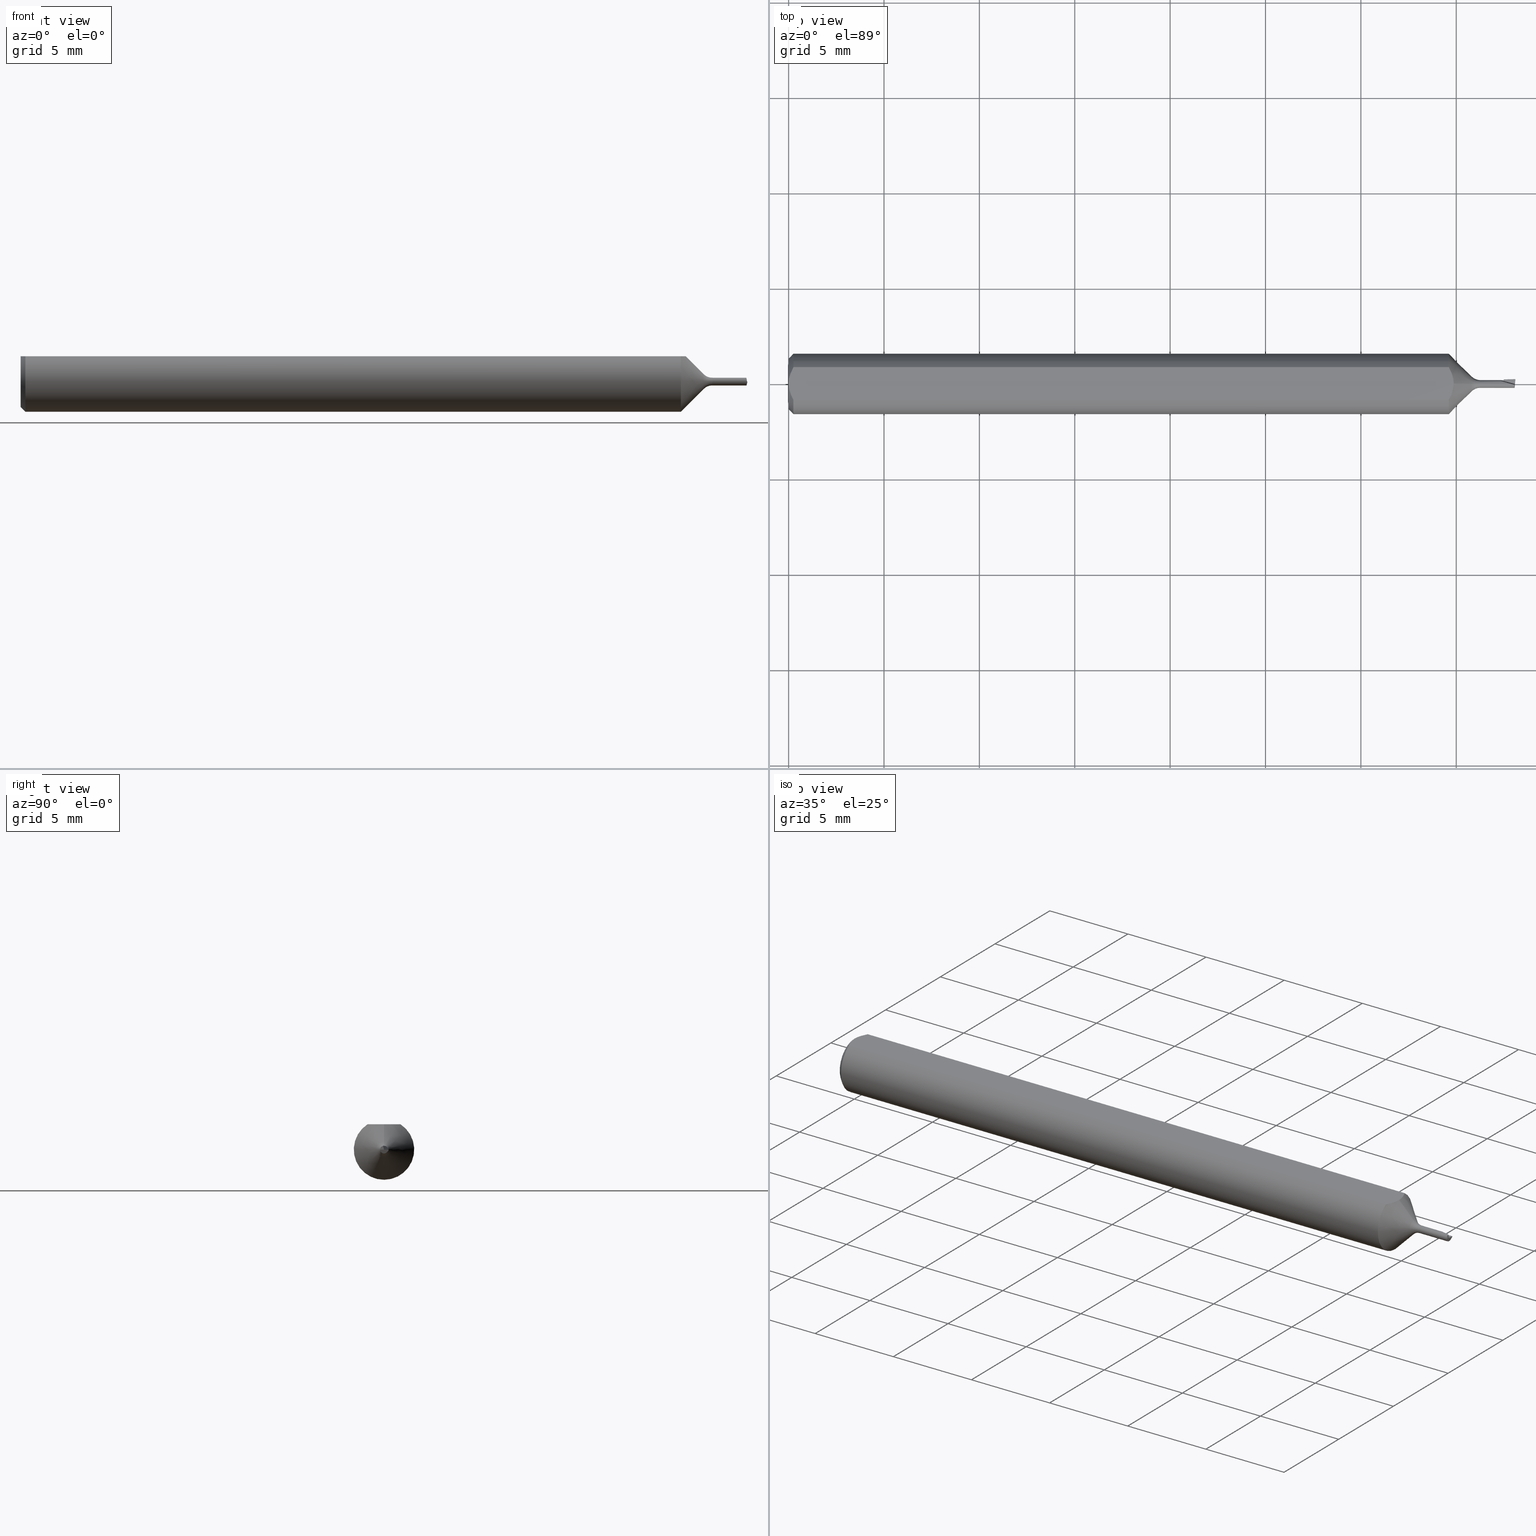
[diagram: canonical four-view strip — front | top / right | iso, engineering-drawing reading convention]
A machine part, canonical four-view strip (front | top / right | iso — engineering-drawing reading convention). The complete STEP part file that produces these views, byte-faithful:
ISO-10303-21;
HEADER;
FILE_DESCRIPTION (( 'STEP AP203' ),
    '1' );
FILE_NAME ('210004-MB020075.STEP',
    '2025-01-28T22:28:11',
    ( '' ),
    ( '' ),
    'SwSTEP 2.0',
    'SolidWorks 2024',
    '' );
FILE_SCHEMA (( 'CONFIG_CONTROL_DESIGN' ));
ENDSEC;

DATA;
#1 = CARTESIAN_POINT ( 'NONE',  ( 1.499999999999999556, 0.009999999999999982861, 0.000000000000000000 ) ) ;
#2 = VERTEX_POINT ( 'NONE', #649 ) ;
#3 = DIRECTION ( 'NONE',  ( 0.000000000000000000, 0.000000000000000000, 1.000000000000000000 ) ) ;
#4 = CARTESIAN_POINT ( 'NONE',  ( 1.474761426859002356, 0.01878347275728139629, 6.402768735150616918E-18 ) ) ;
#5 = EDGE_LOOP ( 'NONE', ( #680, #18, #164, #569, #694, #367 ) ) ;
#6 = AXIS2_PLACEMENT_3D ( 'NONE', #147, #628, #261 ) ;
#7 = LINE ( 'NONE', #613, #705 ) ;
#8 = EDGE_CURVE ( 'NONE', #373, #517, #662, .T. ) ;
#9 = LINE ( 'NONE', #511, #268 ) ;
#10 = EDGE_LOOP ( 'NONE', ( #564, #186, #493, #255, #621 ) ) ;
#11 = DIRECTION ( 'NONE',  ( 1.000000000000000000, 0.000000000000000000, 0.000000000000000000 ) ) ;
#12 = CARTESIAN_POINT ( 'NONE',  ( 1.475999999999999979, 0.003554855916695717592, -0.007219560439024959482 ) ) ;
#13 = VECTOR ( 'NONE', #515, 39.37007874015748854 ) ;
#14 = ORIENTED_EDGE ( 'NONE', *, *, #523, .T. ) ;
#15 = LOCAL_TIME ( 14, 28, 11.00000000000000000, #578 ) ;
#16 = CARTESIAN_POINT ( 'NONE',  ( 1.367985771068365164, -0.02321109678391105810, 0.05235000000000001458 ) ) ;
#17 = DIRECTION ( 'NONE',  ( -1.000000000000000000, -0.000000000000000000, -0.000000000000000000 ) ) ;
#18 = ORIENTED_EDGE ( 'NONE', *, *, #336, .T. ) ;
#19 = ADVANCED_FACE ( 'NONE', ( #267 ), #48, .F. ) ;
#20 = VECTOR ( 'NONE', #62, 39.37007874015748854 ) ;
#21 = DIRECTION ( 'NONE',  ( 0.000000000000000000, 0.000000000000000000, 1.000000000000000000 ) ) ;
#22 = FACE_OUTER_BOUND ( 'NONE', #424, .T. ) ;
#23 = ORIENTED_EDGE ( 'NONE', *, *, #421, .T. ) ;
#24 = CARTESIAN_POINT ( 'NONE',  ( 1.372649999999999926, 4.307014571141468397E-21, 0.05235000000000001458 ) ) ;
#25 = CARTESIAN_POINT ( 'NONE',  ( 1.475999999999999979, 0.008000000000000000167, -1.707404996040164512E-17 ) ) ;
#26 = VERTEX_POINT ( 'NONE', #42 ) ;
#27 = AXIS2_PLACEMENT_3D ( 'NONE', #273, #707, #372 ) ;
#28 =( BOUNDED_CURVE ( )  B_SPLINE_CURVE ( 3, ( #687, #413, #354, #419 ),
 .UNSPECIFIED., .F., .F. ) 
 B_SPLINE_CURVE_WITH_KNOTS ( ( 4, 4 ),
 ( 5.959285661863048311, 7.298880934359480932 ),
 .UNSPECIFIED. ) 
 CURVE ( )  GEOMETRIC_REPRESENTATION_ITEM ( )  RATIONAL_B_SPLINE_CURVE ( ( 1.000000000000000000, 0.8559648765899723344, 0.8559648765899723344, 1.000000000000000000 ) ) 
 REPRESENTATION_ITEM ( '' )  );
#29 = CARTESIAN_POINT ( 'NONE',  ( 1.497996491941867347, 9.797174393178825149E-19, -0.008000000000000000167 ) ) ;
#30 = ADVANCED_FACE ( 'NONE', ( #223 ), #274, .F. ) ;
#31 = DIRECTION ( 'NONE',  ( 0.000000000000000000, 0.000000000000000000, 1.000000000000000000 ) ) ;
#32 = VERTEX_POINT ( 'NONE', #211 ) ;
#33 =( NAMED_UNIT ( * ) PLANE_ANGLE_UNIT ( ) SI_UNIT ( $, .RADIAN. ) );
#34 = VECTOR ( 'NONE', #388, 39.37007874015748143 ) ;
#35 = LINE ( 'NONE', #25, #689 ) ;
#36 = ORIENTED_EDGE ( 'NONE', *, *, #514, .T. ) ;
#37 = DIRECTION ( 'NONE',  ( 0.01850989765925709768, -0.7068644733530222712, 0.7071067811865463515 ) ) ;
#38 = ORIENTED_EDGE ( 'NONE', *, *, #98, .T. ) ;
#39 = VECTOR ( 'NONE', #675, 39.37007874015748143 ) ;
#40 = APPROVAL_DATE_TIME ( #269, #334 ) ;
#41 = CARTESIAN_POINT ( 'NONE',  ( 1.475158586863234866, 0.003616544101236906193, -0.007135867765297259323 ) ) ;
#42 = CARTESIAN_POINT ( 'NONE',  ( 1.475158586863234866, 0.003616544101236906193, -0.007135867765297259323 ) ) ;
#43 = EDGE_CURVE ( 'NONE', #474, #236, #609, .T. ) ;
#44 = DIRECTION ( 'NONE',  ( 0.000000000000000000, 0.000000000000000000, 1.000000000000000000 ) ) ;
#45 = CIRCLE ( 'NONE', #79, 0.05235000000000005621 ) ;
#46 = DIRECTION ( 'NONE',  ( -0.1553955395109672677, -0.2251791664716555619, 0.9618453978094534396 ) ) ;
#47 = CARTESIAN_POINT ( 'NONE',  ( 1.475999999999999979, 0.000000000000000000, 0.000000000000000000 ) ) ;
#48 = PLANE ( 'NONE',  #646 ) ;
#49 = AXIS2_PLACEMENT_3D ( 'NONE', #65, #222, #285 ) ;
#50 = APPROVAL_PERSON_ORGANIZATION ( #471, #344, #146 ) ;
#51 = PLANE ( 'NONE',  #318 ) ;
#52 = EDGE_CURVE ( 'NONE', #633, #301, #539, .T. ) ;
#53 = VERTEX_POINT ( 'NONE', #432 ) ;
#54 = CARTESIAN_POINT ( 'NONE',  ( 1.475066397683010289, 0.007137106857861592359, -0.003614098186195962344 ) ) ;
#55 = PRODUCT_DEFINITION ( 'UNKNOWN', '', #706, #541 ) ;
#56 = VECTOR ( 'NONE', #17, 39.37007874015748143 ) ;
#57 = CARTESIAN_POINT ( 'NONE',  ( 1.498181877299916032, 0.001856985181444872164, -0.007837534848287940059 ) ) ;
#58 = DIRECTION ( 'NONE',  ( -0.1594343877653937036, -0.7002650904991644110, -0.6958516214151341250 ) ) ;
#59 = CARTESIAN_POINT ( 'NONE',  ( 1.371579082550520745, 0.01191445041138213153, 0.05235000000000001458 ) ) ;
#60 = CARTESIAN_POINT ( 'NONE',  ( 0.01000000000000002970, 0.000000000000000000, -0.06235000000000001652 ) ) ;
#61 = VECTOR ( 'NONE', #233, 39.37007874015748854 ) ;
#62 = DIRECTION ( 'NONE',  ( 0.000000000000000000, -0.7072279454806355004, -0.7069855961271340750 ) ) ;
#63 = ORIENTED_EDGE ( 'NONE', *, *, #440, .F. ) ;
#64 = ADVANCED_FACE ( 'NONE', ( #488 ), #214, .F. ) ;
#65 = CARTESIAN_POINT ( 'NONE',  ( 1.409677669529663779, 0.000000000000000000, 0.000000000000000000 ) ) ;
#66 = CARTESIAN_POINT ( 'NONE',  ( 1.475722269840933576, 0.003646604819637955068, -0.007120572848122872639 ) ) ;
#67 = ORIENTED_EDGE ( 'NONE', *, *, #653, .F. ) ;
#68 = CARTESIAN_POINT ( 'NONE',  ( 0.000000000000000000, 0.000000000000000000, 0.05235000000000005621 ) ) ;
#69 = CARTESIAN_POINT ( 'NONE',  ( 1.475999999999999979, 0.003661598756718206608, -0.007112854177107787688 ) ) ;
#70 = ORIENTED_EDGE ( 'NONE', *, *, #644, .F. ) ;
#71 = CARTESIAN_POINT ( 'NONE',  ( 1.475441797860601589, 0.003631586551092023159, -0.007128244069752311292 ) ) ;
#72 = TOROIDAL_SURFACE ( 'NONE', #328, 0.03300000000000002931, 0.02500000000000003261 ) ;
#73 = EDGE_CURVE ( 'NONE', #629, #513, #45, .T. ) ;
#74 = VERTEX_POINT ( 'NONE', #271 ) ;
#75 = CC_DESIGN_APPROVAL ( #110, ( #706 ) ) ;
#76 = COORDINATED_UNIVERSAL_TIME_OFFSET ( 8, 0, .BEHIND. ) ;
#77 = FACE_OUTER_BOUND ( 'NONE', #325, .T. ) ;
#78 = EDGE_LOOP ( 'NONE', ( #590, #63 ) ) ;
#79 = AXIS2_PLACEMENT_3D ( 'NONE', #327, #331, #547 ) ;
#80 = CARTESIAN_POINT ( 'NONE',  ( 1.371577944566060525, -0.01191841935955603726, 0.05235000000000002152 ) ) ;
#81 = PLANE ( 'NONE',  #416 ) ;
#82 = ORIENTED_EDGE ( 'NONE', *, *, #444, .F. ) ;
#83 = PERSON_AND_ORGANIZATION_ROLE ( 'design_owner' ) ;
#84 = PLANE ( 'NONE',  #105 ) ;
#85 = ORIENTED_EDGE ( 'NONE', *, *, #492, .T. ) ;
#86 = AXIS2_PLACEMENT_3D ( 'NONE', #506, #503, #187 ) ;
#87 = LOCAL_TIME ( 14, 28, 11.00000000000000000, #643 ) ;
#88 =( NAMED_UNIT ( * ) SI_UNIT ( $, .STERADIAN. ) SOLID_ANGLE_UNIT ( ) );
#89 = EDGE_CURVE ( 'NONE', #633, #248, #377, .T. ) ;
#90 = DIRECTION ( 'NONE',  ( -1.000000000000000000, -0.000000000000000000, -0.000000000000000000 ) ) ;
#91 = ORIENTED_EDGE ( 'NONE', *, *, #421, .F. ) ;
#92 = DATE_TIME_ROLE ( 'creation_date' ) ;
#93 = CARTESIAN_POINT ( 'NONE',  ( 1.499124228362134437, -1.011562607044112469E-05, 2.603792618961250911E-16 ) ) ;
#94 = ORIENTED_EDGE ( 'NONE', *, *, #43, .T. ) ;
#95 = CYLINDRICAL_SURFACE ( 'NONE', #483, 0.008000000000000000167 ) ;
#96 = CC_DESIGN_PERSON_AND_ORGANIZATION_ASSIGNMENT ( #384, #540, ( #706 ) ) ;
#97 = VERTEX_POINT ( 'NONE', #549 ) ;
#98 = EDGE_CURVE ( 'NONE', #138, #2, #374, .T. ) ;
#99 = CIRCLE ( 'NONE', #340, 0.008000000000000000167 ) ;
#100 = PERSON_AND_ORGANIZATION ( #181, #295 ) ;
#101 = CARTESIAN_POINT ( 'NONE',  ( 1.475086706337204179, 0.006361550643809284200, -0.005145663541866631399 ) ) ;
#102 = ORIENTED_EDGE ( 'NONE', *, *, #567, .F. ) ;
#103 = COORDINATED_UNIVERSAL_TIME_OFFSET ( 8, 0, .BEHIND. ) ;
#104 = LINE ( 'NONE', #703, #195 ) ;
#105 = AXIS2_PLACEMENT_3D ( 'NONE', #311, #37, #579 ) ;
#106 = CARTESIAN_POINT ( 'NONE',  ( 1.118115407029749875, 3.475397056992419894E-33, -2.987958743070287587E-17 ) ) ;
#107 = CARTESIAN_POINT ( 'NONE',  ( 0.01000000000000002970, 0.000000000000000000, 0.000000000000000000 ) ) ;
#108 = B_SPLINE_CURVE_WITH_KNOTS ( 'NONE', 3,
 ( #127, #348, #679, #59, #124, #404 ),
 .UNSPECIFIED., .F., .F.,
 ( 4, 2, 4 ),
 ( 0.002206836618262071094, 0.002655951637760988696, 0.003105066657259906299 ),
 .UNSPECIFIED. ) ;
#109 = DIRECTION ( 'NONE',  ( 0.000000000000000000, 0.000000000000000000, -1.000000000000000000 ) ) ;
#110 = APPROVAL ( #681, 'UNSPECIFIED' ) ;
#111 = AXIS2_PLACEMENT_3D ( 'NONE', #686, #526, #21 ) ;
#112 = UNCERTAINTY_MEASURE_WITH_UNIT (LENGTH_MEASURE( 1.000000000000000082E-05 ), #518, 'distance_accuracy_value', 'NONE');
#113 = EDGE_CURVE ( 'NONE', #53, #688, #711, .T. ) ;
#114 = DIRECTION ( 'NONE',  ( -1.000000000000000000, -0.000000000000000000, -0.000000000000000000 ) ) ;
#115 = CARTESIAN_POINT ( 'NONE',  ( 1.407639831148760123, 0.04167748776716001524, -1.493979371535143794E-17 ) ) ;
#116 = CARTESIAN_POINT ( 'NONE',  ( 1.493110350759723648, -0.0006179133109972500789, 0.007999999999999996697 ) ) ;
#117 = CARTESIAN_POINT ( 'NONE',  ( 0.000000000000000000, 9.797174393178825149E-19, -0.008000000000000000167 ) ) ;
#118 = CARTESIAN_POINT ( 'NONE',  ( 1.403346222888795403, 0.02565352359317315395, -1.707404996040164512E-17 ) ) ;
#119 = FACE_OUTER_BOUND ( 'NONE', #78, .T. ) ;
#120 = ORIENTED_EDGE ( 'NONE', *, *, #132, .T. ) ;
#121 = EDGE_CURVE ( 'NONE', #467, #642, #108, .T. ) ;
#122 = DIRECTION ( 'NONE',  ( 0.000000000000000000, 0.000000000000000000, -1.000000000000000000 ) ) ;
#123 = CIRCLE ( 'NONE', #472, 0.06235000000000000958 ) ;
#124 = CARTESIAN_POINT ( 'NONE',  ( 1.372650000000000148, 0.005922000946320196864, 0.05235000000000002152 ) ) ;
#125 = ORIENTED_EDGE ( 'NONE', *, *, #355, .T. ) ;
#126 = CARTESIAN_POINT ( 'NONE',  ( 1.409677669529663779, 0.000000000000000000, 0.000000000000000000 ) ) ;
#127 = CARTESIAN_POINT ( 'NONE',  ( 1.362649999999999917, 0.03386738844375221380, 0.05235000000000000070 ) ) ;
#128 = ORIENTED_EDGE ( 'NONE', *, *, #199, .T. ) ;
#129 = AXIS2_PLACEMENT_3D ( 'NONE', #243, #291, #227 ) ;
#130 =( BOUNDED_CURVE ( )  B_SPLINE_CURVE ( 3, ( #191, #501, #556, #664 ),
 .UNSPECIFIED., .F., .F. ) 
 B_SPLINE_CURVE_WITH_KNOTS ( ( 4, 4 ),
 ( 4.982986395506907584, 6.553782722301815689 ),
 .UNSPECIFIED. ) 
 CURVE ( )  GEOMETRIC_REPRESENTATION_ITEM ( )  RATIONAL_B_SPLINE_CURVE ( ( 1.000000000000000000, 0.8047378541243622729, 0.8047378541243622729, 1.000000000000000000 ) ) 
 REPRESENTATION_ITEM ( '' )  );
#131 = DIRECTION ( 'NONE',  ( -0.7071067811865479058, 0.000000000000000000, 0.7071067811865469066 ) ) ;
#132 = EDGE_CURVE ( 'NONE', #200, #159, #231, .T. ) ;
#133 = DIRECTION ( 'NONE',  ( 0.000000000000000000, 0.000000000000000000, 1.000000000000000000 ) ) ;
#134 = ORIENTED_EDGE ( 'NONE', *, *, #554, .F. ) ;
#135 = APPLICATION_PROTOCOL_DEFINITION ( 'international standard', 'config_control_design', 1994, #256 ) ;
#136 = DIRECTION ( 'NONE',  ( -0.000000000000000000, 1.000000000000000000, 1.182878904194732666E-16 ) ) ;
#137 = VECTOR ( 'NONE', #602, 39.37007874015748854 ) ;
#138 = VERTEX_POINT ( 'NONE', #667 ) ;
#139 = LINE ( 'NONE', #475, #13 ) ;
#140 = CARTESIAN_POINT ( 'NONE',  ( 1.475999999999999979, 0.008000000000000000167, 0.000000000000000000 ) ) ;
#141 = ORIENTED_EDGE ( 'NONE', *, *, #533, .F. ) ;
#142 = VECTOR ( 'NONE', #385, 39.37007874015748854 ) ;
#143 = CARTESIAN_POINT ( 'NONE',  ( 1.409677669529663779, 1.876444296597530893E-18, -0.01532233047033630148 ) ) ;
#144 = ORIENTED_EDGE ( 'NONE', *, *, #444, .T. ) ;
#145 = B_SPLINE_CURVE_WITH_KNOTS ( 'NONE', 3,
 ( #423, #528, #203, #299, #480, #247 ),
 .UNSPECIFIED., .F., .F.,
 ( 4, 2, 4 ),
 ( 0.0009229516234079799489, 0.001371626545108142140, 0.001820301466808304115 ),
 .UNSPECIFIED. ) ;
#146 = APPROVAL_ROLE ( '' ) ;
#147 = CARTESIAN_POINT ( 'NONE',  ( 1.491406878966275107, 0.02355843477542560530, 0.06931876481191022454 ) ) ;
#148 = EDGE_LOOP ( 'NONE', ( #616, #153, #189, #157 ) ) ;
#149 = CONICAL_SURFACE ( 'NONE', #27, 0.01532233047033630148, 0.7853981633974476129 ) ;
#150 = AXIS2_PLACEMENT_3D ( 'NONE', #361, #249, #634 ) ;
#151 = MECHANICAL_CONTEXT ( 'NONE', #371, 'mechanical' ) ;
#152 = FACE_OUTER_BOUND ( 'NONE', #202, .T. ) ;
#153 = ORIENTED_EDGE ( 'NONE', *, *, #259, .T. ) ;
#154 = VECTOR ( 'NONE', #611, 39.37007874015748854 ) ;
#155 = SHAPE_DEFINITION_REPRESENTATION ( #160, #339 ) ;
#156 = FACE_OUTER_BOUND ( 'NONE', #525, .T. ) ;
#157 = ORIENTED_EDGE ( 'NONE', *, *, #286, .T. ) ;
#158 = CARTESIAN_POINT ( 'NONE',  ( 1.475118488375769976, 0.005147843557673923570, -0.006359786677677238195 ) ) ;
#159 = VERTEX_POINT ( 'NONE', #12 ) ;
#160 = PRODUCT_DEFINITION_SHAPE ( 'NONE', 'NONE',  #55 ) ;
#161 = CIRCLE ( 'NONE', #275, 0.007999999999999998432 ) ;
#162 = DIRECTION ( 'NONE',  ( 0.000000000000000000, 0.000000000000000000, 1.000000000000000000 ) ) ;
#163 = CARTESIAN_POINT ( 'NONE',  ( 1.427355339059327433, 0.000000000000000000, 0.03300000000000002931 ) ) ;
#164 = ORIENTED_EDGE ( 'NONE', *, *, #210, .T. ) ;
#165 = EDGE_CURVE ( 'NONE', #248, #373, #9, .T. ) ;
#166 = DIRECTION ( 'NONE',  ( 0.02311287349681699979, -0.8826450287709640685, 0.4694715627858882523 ) ) ;
#167 = DIRECTION ( 'NONE',  ( 0.000000000000000000, 0.000000000000000000, -1.000000000000000000 ) ) ;
#168 = CC_DESIGN_PERSON_AND_ORGANIZATION_ASSIGNMENT ( #636, #365, ( #55 ) ) ;
#169 = ADVANCED_FACE ( 'NONE', ( #281 ), #234, .F. ) ;
#170 = DIRECTION ( 'NONE',  ( 0.000000000000000000, 0.2673071603635651106, -0.9636113749942802897 ) ) ;
#171 = ORIENTED_EDGE ( 'NONE', *, *, #219, .T. ) ;
#172 = LOCAL_TIME ( 14, 28, 11.00000000000000000, #76 ) ;
#173 = DIRECTION ( 'NONE',  ( 0.000000000000000000, 0.000000000000000000, 1.000000000000000000 ) ) ;
#174 = ORIENTED_EDGE ( 'NONE', *, *, #272, .T. ) ;
#175 = DIRECTION ( 'NONE',  ( -1.000000000000000000, -0.000000000000000000, -0.000000000000000000 ) ) ;
#176 = ADVANCED_FACE ( 'NONE', ( #185 ), #465, .T. ) ;
#177 = LINE ( 'NONE', #395, #20 ) ;
#178 = ORIENTED_EDGE ( 'NONE', *, *, #89, .T. ) ;
#179 = LINE ( 'NONE', #118, #685 ) ;
#180 = CARTESIAN_POINT ( 'NONE',  ( 0.000000000000000000, 0.000000000000000000, 0.000000000000000000 ) ) ;
#181 = PERSON ( 'UNSPECIFIED', 'UNSPECIFIED', 'UNSPECIFIED', ('UNSPECIFIED'), ('UNSPECIFIED'), ('UNSPECIFIED') ) ;
#182 = EDGE_LOOP ( 'NONE', ( #505, #532, #85, #656, #442, #520, #470, #232 ) ) ;
#183 =( BOUNDED_CURVE ( )  B_SPLINE_CURVE ( 3, ( #54, #101, #158, #41 ),
 .UNSPECIFIED., .F., .T. ) 
 B_SPLINE_CURVE_WITH_KNOTS ( ( 4, 4 ),
 ( 0.4687396896696281456, 1.101713903381030590 ),
 .UNSPECIFIED. ) 
 CURVE ( )  GEOMETRIC_REPRESENTATION_ITEM ( )  RATIONAL_B_SPLINE_CURVE ( ( 1.000000000000000000, 0.9668897316992471902, 0.9668897316992471902, 1.000000000000000000 ) ) 
 REPRESENTATION_ITEM ( '' )  );
#184 = CARTESIAN_POINT ( 'NONE',  ( 1.372649999999999926, 4.307014571141468397E-21, 0.05235000000000001458 ) ) ;
#185 = FACE_OUTER_BOUND ( 'NONE', #428, .T. ) ;
#186 = ORIENTED_EDGE ( 'NONE', *, *, #165, .F. ) ;
#187 = DIRECTION ( 'NONE',  ( 0.000000000000000000, 0.000000000000000000, -1.000000000000000000 ) ) ;
#188 = CARTESIAN_POINT ( 'NONE',  ( 0.01000000000000849862, -0.03386738844395138781, 0.05235000000000001458 ) ) ;
#189 = ORIENTED_EDGE ( 'NONE', *, *, #477, .F. ) ;
#190 = LENGTH_MEASURE_WITH_UNIT ( LENGTH_MEASURE( 0.02539999999999999897 ), #464 );
#191 = CARTESIAN_POINT ( 'NONE',  ( 1.490804266888408725, 0.000000000000000000, 0.008000000000000000167 ) ) ;
#192 = VERTEX_POINT ( 'NONE', #342 ) ;
#193 = CARTESIAN_POINT ( 'NONE',  ( 1.372649999999999926, -0.005922793856370157060, 0.05235000000000002152 ) ) ;
#194 = LINE ( 'NONE', #631, #581 ) ;
#195 = VECTOR ( 'NONE', #589, 39.37007874015748854 ) ;
#196 = EDGE_LOOP ( 'NONE', ( #637, #292, #383, #396, #288, #356, #580 ) ) ;
#197 = CARTESIAN_POINT ( 'NONE',  ( 1.365493310265788907, -0.02863284266924762123, 0.05235000000000002152 ) ) ;
#198 = FACE_OUTER_BOUND ( 'NONE', #182, .T. ) ;
#199 = EDGE_CURVE ( 'NONE', #647, #312, #521, .T. ) ;
#200 = VERTEX_POINT ( 'NONE', #69 ) ;
#201 = DIRECTION ( 'NONE',  ( 0.000000000000000000, 0.000000000000000000, 1.000000000000000000 ) ) ;
#202 = EDGE_LOOP ( 'NONE', ( #38, #478, #67, #251, #485, #174, #654, #128, #352, #277, #482, #260 ) ) ;
#203 = CARTESIAN_POINT ( 'NONE',  ( 0.004671770759546972629, 0.02323517832780105929, 0.05235000000000002152 ) ) ;
#204 = ORIENTED_EDGE ( 'NONE', *, *, #653, .T. ) ;
#205 = EDGE_CURVE ( 'NONE', #74, #509, #130, .T. ) ;
#206 = CARTESIAN_POINT ( 'NONE',  ( 1.498546506023773484, 0.004483298119365848947, -0.006881635113016477782 ) ) ;
#207 = ORIENTED_EDGE ( 'NONE', *, *, #618, .T. ) ;
#208 = AXIS2_PLACEMENT_3D ( 'NONE', #603, #652, #109 ) ;
#209 = CALENDAR_DATE ( 2025, 28, 1 ) ;
#210 = EDGE_CURVE ( 'NONE', #629, #688, #527, .T. ) ;
#211 = CARTESIAN_POINT ( 'NONE',  ( 1.427355339059327433, 9.797174393178825149E-19, -0.007999999999999998432 ) ) ;
#212 = PERSON_AND_ORGANIZATION_ROLE ( 'design_supplier' ) ;
#213 = PLANE ( 'NONE',  #695 ) ;
#214 = PLANE ( 'NONE',  #208 ) ;
#215 = CC_DESIGN_APPROVAL ( #334, ( #239 ) ) ;
#216 = DATE_AND_TIME ( #595, #390 ) ;
#217 = DIRECTION ( 'NONE',  ( 0.000000000000000000, 0.000000000000000000, 1.000000000000000000 ) ) ;
#218 = ORIENTED_EDGE ( 'NONE', *, *, #463, .T. ) ;
#219 = EDGE_CURVE ( 'NONE', #308, #474, #529, .T. ) ;
#220 = FACE_OUTER_BOUND ( 'NONE', #458, .T. ) ;
#221 = CARTESIAN_POINT ( 'NONE',  ( 1.498303939223913694, 0.002736161146605380155, -0.007517540966287257313 ) ) ;
#222 = DIRECTION ( 'NONE',  ( -1.000000000000000000, -0.000000000000000000, -0.000000000000000000 ) ) ;
#223 = FACE_OUTER_BOUND ( 'NONE', #10, .T. ) ;
#224 = CIRCLE ( 'NONE', #630, 0.06235000000000000958 ) ;
#225 = ADVANCED_FACE ( 'NONE', ( #119 ), #454, .F. ) ;
#226 = DIRECTION ( 'NONE',  ( 0.9659258262890716429, -0.2588190451025078054, -0.000000000000000000 ) ) ;
#227 = DIRECTION ( 'NONE',  ( 0.1396943646708782294, 0.000000000000000000, 0.9901946699913101169 ) ) ;
#228 = ORIENTED_EDGE ( 'NONE', *, *, #409, .T. ) ;
#229 = CARTESIAN_POINT ( 'NONE',  ( 1.497866140468993246, -0.001833174280245126499, 0.007787135035316118670 ) ) ;
#230 = AXIS2_PLACEMENT_3D ( 'NONE', #163, #317, #167 ) ;
#231 = LINE ( 'NONE', #563, #154 ) ;
#232 = ORIENTED_EDGE ( 'NONE', *, *, #259, .F. ) ;
#233 = DIRECTION ( 'NONE',  ( 0.9996573249755575929, 0.02617694830785934068, 4.043793518691314298E-18 ) ) ;
#234 = PLANE ( 'NONE',  #129 ) ;
#235 = EDGE_CURVE ( 'NONE', #26, #200, #596, .T. ) ;
#236 = VERTEX_POINT ( 'NONE', #504 ) ;
#237 = CARTESIAN_POINT ( 'NONE',  ( 1.427355339059327433, 0.000000000000000000, 0.000000000000000000 ) ) ;
#238 = AXIS2_PLACEMENT_3D ( 'NONE', #237, #624, #173 ) ;
#239 = SECURITY_CLASSIFICATION ( '', '', #698 ) ;
#240 = ORIENTED_EDGE ( 'NONE', *, *, #562, .F. ) ;
#241 = EDGE_CURVE ( 'NONE', #2, #32, #296, .T. ) ;
#242 = CARTESIAN_POINT ( 'NONE',  ( 1.475999999999999979, 0.002736161146605381889, -0.007517540966287257313 ) ) ;
#243 = CARTESIAN_POINT ( 'NONE',  ( 1.495443673491786418, 0.01381007852008727874, -0.03465938240595468900 ) ) ;
#244 = VECTOR ( 'NONE', #552, 39.37007874015748143 ) ;
#245 = EDGE_LOOP ( 'NONE', ( #349, #23 ) ) ;
#246 = APPROVAL_STATUS ( 'not_yet_approved' ) ;
#247 = CARTESIAN_POINT ( 'NONE',  ( 0.000000000000000000, 0.000000000000000000, 0.05235000000000005621 ) ) ;
#248 = VERTEX_POINT ( 'NONE', #1 ) ;
#249 = DIRECTION ( 'NONE',  ( 0.000000000000000000, 0.000000000000000000, 1.000000000000000000 ) ) ;
#250 = CARTESIAN_POINT ( 'NONE',  ( 1.475999999999999979, 0.007775862789353930014, -0.002999999999999993991 ) ) ;
#251 = ORIENTED_EDGE ( 'NONE', *, *, #302, .F. ) ;
#252 = CARTESIAN_POINT ( 'NONE',  ( 1.497586494561550907, -0.004686291501015366762, -0.007999999999999996697 ) ) ;
#253 = CARTESIAN_POINT ( 'NONE',  ( 1.499282403470483471, 0.007951440925968056295, -0.003816130532801942365 ) ) ;
#254 =( BOUNDED_CURVE ( )  B_SPLINE_CURVE ( 3, ( #715, #460, #116, #551 ),
 .UNSPECIFIED., .F., .T. ) 
 B_SPLINE_CURVE_WITH_KNOTS ( ( 4, 4 ),
 ( 4.751785341208482727, 4.982986395506907584 ),
 .UNSPECIFIED. ) 
 CURVE ( )  GEOMETRIC_REPRESENTATION_ITEM ( )  RATIONAL_B_SPLINE_CURVE ( ( 1.000000000000000000, 0.9955504644608670350, 0.9955504644608670350, 1.000000000000000000 ) ) 
 REPRESENTATION_ITEM ( '' )  );
#255 = ORIENTED_EDGE ( 'NONE', *, *, #286, .F. ) ;
#256 = APPLICATION_CONTEXT ( 'configuration controlled 3d designs of mechanical parts and assemblies' ) ;
#257 = CARTESIAN_POINT ( 'NONE',  ( 1.475050322466534336, 0.007750994607946593007, -0.002999999999999993991 ) ) ;
#258 = EDGE_LOOP ( 'NONE', ( #405, #141, #414, #70 ) ) ;
#259 = EDGE_CURVE ( 'NONE', #301, #647, #177, .T. ) ;
#260 = ORIENTED_EDGE ( 'NONE', *, *, #639, .F. ) ;
#261 = DIRECTION ( 'NONE',  ( 0.1396943646708923570, 0.000000000000000000, -0.9901946699913082295 ) ) ;
#262 = ORIENTED_EDGE ( 'NONE', *, *, #453, .F. ) ;
#263 = CIRCLE ( 'NONE', #498, 0.06235000000000001652 ) ;
#264 = CC_DESIGN_SECURITY_CLASSIFICATION ( #239, ( #706 ) ) ;
#265 = ADVANCED_FACE ( 'NONE', ( #283 ), #696, .T. ) ;
#266 = DIRECTION ( 'NONE',  ( -1.000000000000000000, -0.000000000000000000, -0.000000000000000000 ) ) ;
#267 = FACE_OUTER_BOUND ( 'NONE', #5, .T. ) ;
#268 = VECTOR ( 'NONE', #620, 39.37007874015748143 ) ;
#269 = DATE_AND_TIME ( #437, #87 ) ;
#270 = CARTESIAN_POINT ( 'NONE',  ( 1.409677669529663779, 0.000000000000000000, 0.01532233047033632230 ) ) ;
#271 = CARTESIAN_POINT ( 'NONE',  ( 1.490804266888408725, 0.000000000000000000, 0.008000000000000000167 ) ) ;
#272 = EDGE_CURVE ( 'NONE', #509, #436, #586, .T. ) ;
#273 = CARTESIAN_POINT ( 'NONE',  ( 1.409677669529663779, 0.000000000000000000, 0.000000000000000000 ) ) ;
#274 = PLANE ( 'NONE',  #393 ) ;
#275 = AXIS2_PLACEMENT_3D ( 'NONE', #427, #548, #538 ) ;
#276 = CARTESIAN_POINT ( 'NONE',  ( 1.500296196177055119, 0.01338553779562396025, 3.158699242674304408E-16 ) ) ;
#277 = ORIENTED_EDGE ( 'NONE', *, *, #235, .T. ) ;
#278 = DIRECTION ( 'NONE',  ( 0.000000000000000000, 0.000000000000000000, -1.000000000000000000 ) ) ;
#279 = CARTESIAN_POINT ( 'NONE',  ( 1.498078346293486796, 0.0009355995202188460398, -0.008000000000000000167 ) ) ;
#280 = ADVANCED_FACE ( 'NONE', ( #152 ), #476, .T. ) ;
#281 = FACE_OUTER_BOUND ( 'NONE', #196, .T. ) ;
#282 = LINE ( 'NONE', #350, #650 ) ;
#283 = FACE_OUTER_BOUND ( 'NONE', #574, .T. ) ;
#284 = VERTEX_POINT ( 'NONE', #206 ) ;
#285 = DIRECTION ( 'NONE',  ( 0.000000000000000000, 0.000000000000000000, 1.000000000000000000 ) ) ;
#286 = EDGE_CURVE ( 'NONE', #436, #633, #35, .T. ) ;
#287 = CARTESIAN_POINT ( 'NONE',  ( 1.475999999999999979, 0.003661598756718206608, -0.007112854177107787688 ) ) ;
#288 = ORIENTED_EDGE ( 'NONE', *, *, #692, .T. ) ;
#289 = CARTESIAN_POINT ( 'NONE',  ( 1.475999999999999979, 0.009371537882339842779, -1.067128122525102820E-18 ) ) ;
#290 = EDGE_CURVE ( 'NONE', #517, #455, #28, .T. ) ;
#291 = DIRECTION ( 'NONE',  ( -0.9864997997699074261, 0.08630754905045000258, 0.1391731009600518376 ) ) ;
#292 = ORIENTED_EDGE ( 'NONE', *, *, #418, .T. ) ;
#293 = DIRECTION ( 'NONE',  ( 0.000000000000000000, 0.000000000000000000, 1.000000000000000000 ) ) ;
#294 = AXIS2_PLACEMENT_3D ( 'NONE', #484, #641, #369 ) ;
#295 = ORGANIZATION ( 'UNSPECIFIED', 'UNSPECIFIED', '' ) ;
#296 = LINE ( 'NONE', #117, #244 ) ;
#297 = VERTEX_POINT ( 'NONE', #473 ) ;
#298 = PERSON_AND_ORGANIZATION ( #181, #295 ) ;
#299 = CARTESIAN_POINT ( 'NONE',  ( 0.001063697276021615887, 0.01189177144351694602, 0.05235000000000001458 ) ) ;
#300 = AXIS2_PLACEMENT_3D ( 'NONE', #180, #398, #449 ) ;
#301 = VERTEX_POINT ( 'NONE', #250 ) ;
#302 = EDGE_CURVE ( 'NONE', #74, #236, #531, .T. ) ;
#303 = DIRECTION ( 'NONE',  ( -1.000000000000000000, -0.000000000000000000, -0.000000000000000000 ) ) ;
#304 = ORIENTED_EDGE ( 'NONE', *, *, #241, .F. ) ;
#305 = VECTOR ( 'NONE', #693, 39.37007874015748143 ) ;
#306 = CARTESIAN_POINT ( 'NONE',  ( 1.427355339059327433, 0.000000000000000000, 0.000000000000000000 ) ) ;
#307 = APPROVAL_PERSON_ORGANIZATION ( #298, #110, #412 ) ;
#308 = VERTEX_POINT ( 'NONE', #516 ) ;
#309 = CALENDAR_DATE ( 2025, 28, 1 ) ;
#310 = ADVANCED_FACE ( 'NONE', ( #22 ), #575, .F. ) ;
#311 = CARTESIAN_POINT ( 'NONE',  ( 1.475050322466534336, 0.007750994607946593007, -0.002999999999999993991 ) ) ;
#312 = VERTEX_POINT ( 'NONE', #690 ) ;
#313 = CARTESIAN_POINT ( 'NONE',  ( 0.01000000000000849862, -0.03386738844395138781, 0.05235000000000001458 ) ) ;
#314 = LINE ( 'NONE', #257, #599 ) ;
#315 = ORIENTED_EDGE ( 'NONE', *, *, #290, .T. ) ;
#316 = FACE_OUTER_BOUND ( 'NONE', #691, .T. ) ;
#317 = DIRECTION ( 'NONE',  ( 0.000000000000000000, -1.000000000000000000, 0.000000000000000000 ) ) ;
#318 = AXIS2_PLACEMENT_3D ( 'NONE', #597, #496, #170 ) ;
#319 = DIRECTION ( 'NONE',  ( 1.000000000000000000, 0.000000000000000000, 0.000000000000000000 ) ) ;
#320 = DIRECTION ( 'NONE',  ( 3.169514471227730272E-17, 1.182878904194732666E-16, -1.000000000000000000 ) ) ;
#321 = ADVANCED_FACE ( 'NONE', ( #77 ), #81, .F. ) ;
#322 = AXIS2_PLACEMENT_3D ( 'NONE', #410, #625, #133 ) ;
#323 = PERSON_AND_ORGANIZATION ( #181, #295 ) ;
#324 = LINE ( 'NONE', #276, #137 ) ;
#325 = EDGE_LOOP ( 'NONE', ( #392, #120, #502 ) ) ;
#326 = CYLINDRICAL_SURFACE ( 'NONE', #353, 0.06235000000000000958 ) ;
#327 = CARTESIAN_POINT ( 'NONE',  ( 0.000000000000000000, 0.000000000000000000, 0.000000000000000000 ) ) ;
#328 = AXIS2_PLACEMENT_3D ( 'NONE', #448, #175, #3 ) ;
#329 = FACE_OUTER_BOUND ( 'NONE', #677, .T. ) ;
#330 = ADVANCED_FACE ( 'NONE', ( #198 ), #84, .F. ) ;
#331 = DIRECTION ( 'NONE',  ( -1.000000000000000000, -0.000000000000000000, -0.000000000000000000 ) ) ;
#332 = VECTOR ( 'NONE', #366, 39.37007874015748143 ) ;
#333 = DIRECTION ( 'NONE',  ( 1.000000000000000000, 0.000000000000000000, 0.000000000000000000 ) ) ;
#334 = APPROVAL ( #544, 'UNSPECIFIED' ) ;
#335 = CARTESIAN_POINT ( 'NONE',  ( 1.475380964135455386, 0.007128662531458702586, -0.003630774008704138779 ) ) ;
#336 = EDGE_CURVE ( 'NONE', #192, #629, #145, .T. ) ;
#337 = DIRECTION ( 'NONE',  ( 0.000000000000000000, 0.000000000000000000, 1.000000000000000000 ) ) ;
#338 = ORIENTED_EDGE ( 'NONE', *, *, #210, .F. ) ;
#339 = ADVANCED_BREP_SHAPE_REPRESENTATION ( '210004-MB020075', ( #425, #150 ), #673 ) ;
#340 = AXIS2_PLACEMENT_3D ( 'NONE', #47, #266, #713 ) ;
#341 = DIRECTION ( 'NONE',  ( -0.000000000000000000, 0.9396926207859068736, 0.3420201433256727097 ) ) ;
#342 = CARTESIAN_POINT ( 'NONE',  ( 0.01000000000000002970, 0.03386738844375219992, 0.05235000000000001458 ) ) ;
#343 = ORIENTED_EDGE ( 'NONE', *, *, #601, .T. ) ;
#344 = APPROVAL ( #246, 'UNSPECIFIED' ) ;
#345 = EDGE_CURVE ( 'NONE', #312, #26, #314, .T. ) ;
#346 = FACE_OUTER_BOUND ( 'NONE', #420, .T. ) ;
#347 = CLOSED_SHELL ( 'NONE', ( #176, #585, #310, #280, #468, #499, #321, #623, #674, #486, #508, #64, #632, #30, #495, #225, #430, #330, #169, #265, #19 ) ) ;
#348 = CARTESIAN_POINT ( 'NONE',  ( 1.365497562589150560, 0.02862501412462241726, 0.05235000000000001458 ) ) ;
#349 = ORIENTED_EDGE ( 'NONE', *, *, #73, .T. ) ;
#350 = CARTESIAN_POINT ( 'NONE',  ( 0.000000000000000000, 0.03386738844375221380, 0.05235000000000000070 ) ) ;
#351 = DIRECTION ( 'NONE',  ( -0.9996573249755577040, -0.02617694830785880292, 0.000000000000000000 ) ) ;
#352 = ORIENTED_EDGE ( 'NONE', *, *, #440, .T. ) ;
#353 = AXIS2_PLACEMENT_3D ( 'NONE', #431, #651, #162 ) ;
#354 = CARTESIAN_POINT ( 'NONE',  ( 1.497879481465619778, -0.007999999999999871797, 0.003868241944399396486 ) ) ;
#355 = EDGE_CURVE ( 'NONE', #248, #297, #683, .T. ) ;
#356 = ORIENTED_EDGE ( 'NONE', *, *, #659, .F. ) ;
#357 = CARTESIAN_POINT ( 'NONE',  ( 1.362649999999999917, -0.03386738844375221380, 0.05235000000000000070 ) ) ;
#358 = DIRECTION ( 'NONE',  ( 0.7071067811865499042, 0.000000000000000000, -0.7071067811865451302 ) ) ;
#359 = AXIS2_PLACEMENT_3D ( 'NONE', #306, #573, #31 ) ;
#360 = ORIENTED_EDGE ( 'NONE', *, *, #73, .F. ) ;
#361 = CARTESIAN_POINT ( 'NONE',  ( 0.000000000000000000, 0.000000000000000000, 0.000000000000000000 ) ) ;
#362 = CARTESIAN_POINT ( 'NONE',  ( 0.000000000000000000, 0.008000000000000000167, -6.402768735150616610E-17 ) ) ;
#363 = ORIENTED_EDGE ( 'NONE', *, *, #682, .T. ) ;
#364 = EDGE_CURVE ( 'NONE', #308, #32, #592, .T. ) ;
#365 = PERSON_AND_ORGANIZATION_ROLE ( 'creator' ) ;
#366 = DIRECTION ( 'NONE',  ( 1.000000000000000000, 0.000000000000000000, 0.000000000000000000 ) ) ;
#367 = ORIENTED_EDGE ( 'NONE', *, *, #121, .F. ) ;
#368 = DATE_AND_TIME ( #309, #172 ) ;
#369 = DIRECTION ( 'NONE',  ( 0.000000000000000000, -1.224646799147353207E-16, 1.000000000000000000 ) ) ;
#370 = ORIENTED_EDGE ( 'NONE', *, *, #409, .F. ) ;
#371 = APPLICATION_CONTEXT ( 'configuration controlled 3d designs of mechanical parts and assemblies' ) ;
#372 = DIRECTION ( 'NONE',  ( 0.000000000000000000, 0.000000000000000000, 1.000000000000000000 ) ) ;
#373 = VERTEX_POINT ( 'NONE', #93 ) ;
#374 =( BOUNDED_CURVE ( )  B_SPLINE_CURVE ( 3, ( #221, #57, #279, #536 ),
 .UNSPECIFIED., .F., .F. ) 
 B_SPLINE_CURVE_WITH_KNOTS ( ( 4, 4 ),
 ( 5.379018757165796139, 5.728084607564664310 ),
 .UNSPECIFIED. ) 
 CURVE ( )  GEOMETRIC_REPRESENTATION_ITEM ( )  RATIONAL_B_SPLINE_CURVE ( ( 1.000000000000000000, 0.9898718353414719395, 0.9898718353414719395, 1.000000000000000000 ) ) 
 REPRESENTATION_ITEM ( '' )  );
#375 = CARTESIAN_POINT ( 'NONE',  ( 1.560200597524541877, 0.002736161146605381889, -0.007517540966287257313 ) ) ;
#376 = PRODUCT ( '210004-MB020075', '210004-MB020075', '', ( #151 ) ) ;
#377 = LINE ( 'NONE', #106, #34 ) ;
#378 = CIRCLE ( 'NONE', #434, 0.06235000000000001652 ) ;
#379 = EDGE_CURVE ( 'NONE', #513, #658, #194, .T. ) ;
#380 = DATE_AND_TIME ( #209, #401 ) ;
#381 = CARTESIAN_POINT ( 'NONE',  ( 1.469230069871137134, 0.008000000000000014044, -1.707404996040164512E-17 ) ) ;
#382 = DIRECTION ( 'NONE',  ( 0.000000000000000000, 0.000000000000000000, -1.000000000000000000 ) ) ;
#383 = ORIENTED_EDGE ( 'NONE', *, *, #682, .F. ) ;
#384 = PERSON_AND_ORGANIZATION ( #181, #295 ) ;
#385 = DIRECTION ( 'NONE',  ( 0.000000000000000000, -0.4695970100586597251, -0.8828808799288649922 ) ) ;
#386 = PERSON_AND_ORGANIZATION ( #181, #295 ) ;
#387 = CARTESIAN_POINT ( 'NONE',  ( 0.000000000000000000, 0.000000000000000000, 0.000000000000000000 ) ) ;
#388 = DIRECTION ( 'NONE',  ( 0.9996573249755572599, 0.02617694830787355154, 3.478069957074627356E-17 ) ) ;
#389 = CONICAL_SURFACE ( 'NONE', #615, 0.01532233047033630148, 0.7853981633974476129 ) ;
#390 = LOCAL_TIME ( 14, 28, 11.00000000000000000, #103 ) ;
#391 = LINE ( 'NONE', #607, #638 ) ;
#392 = ORIENTED_EDGE ( 'NONE', *, *, #712, .F. ) ;
#393 = AXIS2_PLACEMENT_3D ( 'NONE', #115, #320, #439 ) ;
#394 = LINE ( 'NONE', #660, #61 ) ;
#395 = CARTESIAN_POINT ( 'NONE',  ( 1.475999999999999979, 0.009387969716269109477, -0.001388445501865392647 ) ) ;
#396 = ORIENTED_EDGE ( 'NONE', *, *, #98, .F. ) ;
#397 = DIRECTION ( 'NONE',  ( 1.000000000000000000, 0.000000000000000000, 0.000000000000000000 ) ) ;
#398 = DIRECTION ( 'NONE',  ( 1.000000000000000000, 0.000000000000000000, 0.000000000000000000 ) ) ;
#399 = EDGE_LOOP ( 'NONE', ( #577, #218, #672, #557, #144, #36 ) ) ;
#400 = CIRCLE ( 'NONE', #49, 0.01532233047033630148 ) ;
#401 = LOCAL_TIME ( 14, 28, 11.00000000000000000, #537 ) ;
#402 = CARTESIAN_POINT ( 'NONE',  ( 1.362649999999999917, 0.000000000000000000, 0.000000000000000000 ) ) ;
#403 =( BOUNDED_CURVE ( )  B_SPLINE_CURVE ( 3, ( #29, #252, #584, #678 ),
 .UNSPECIFIED., .F., .F. ) 
 B_SPLINE_CURVE_WITH_KNOTS ( ( 4, 4 ),
 ( 5.728084607564664310, 7.298880934359593731 ),
 .UNSPECIFIED. ) 
 CURVE ( )  GEOMETRIC_REPRESENTATION_ITEM ( )  RATIONAL_B_SPLINE_CURVE ( ( 1.000000000000000000, 0.8047378541243572769, 0.8047378541243572769, 1.000000000000000000 ) ) 
 REPRESENTATION_ITEM ( '' )  );
#404 = CARTESIAN_POINT ( 'NONE',  ( 1.372649999999999926, 4.307014571141468397E-21, 0.05235000000000001458 ) ) ;
#405 = ORIENTED_EDGE ( 'NONE', *, *, #8, .F. ) ;
#406 = LINE ( 'NONE', #669, #39 ) ;
#407 = CARTESIAN_POINT ( 'NONE',  ( 1.475692166181967302, 0.007120159812664674306, -0.003647420133713647969 ) ) ;
#408 = ORIENTED_EDGE ( 'NONE', *, *, #379, .T. ) ;
#409 = EDGE_CURVE ( 'NONE', #308, #97, #576, .T. ) ;
#410 = CARTESIAN_POINT ( 'NONE',  ( 1.409677669529663779, 0.000000000000000000, 0.000000000000000000 ) ) ;
#411 = ORIENTED_EDGE ( 'NONE', *, *, #336, .F. ) ;
#412 = APPROVAL_ROLE ( '' ) ;
#413 = CARTESIAN_POINT ( 'NONE',  ( 1.497661768643194558, -0.005598489576533846601, 0.006900739830036387197 ) ) ;
#414 = ORIENTED_EDGE ( 'NONE', *, *, #205, .F. ) ;
#415 = CARTESIAN_POINT ( 'NONE',  ( 0.000000000000000000, 0.000000000000000000, 0.008000000000000000167 ) ) ;
#416 = AXIS2_PLACEMENT_3D ( 'NONE', #140, #582, #519 ) ;
#417 = ORIENTED_EDGE ( 'NONE', *, *, #121, .T. ) ;
#418 = EDGE_CURVE ( 'NONE', #373, #455, #324, .T. ) ;
#419 = CARTESIAN_POINT ( 'NONE',  ( 1.498425204056532900, -0.007999999999999968942, 3.233398211251061382E-16 ) ) ;
#420 = EDGE_LOOP ( 'NONE', ( #207, #228, #134, #417, #481 ) ) ;
#421 = EDGE_CURVE ( 'NONE', #513, #629, #570, .T. ) ;
#422 = CIRCLE ( 'NONE', #111, 0.008000000000000000167 ) ;
#423 = CARTESIAN_POINT ( 'NONE',  ( 0.01000000000000002970, 0.03386738844375219992, 0.05235000000000001458 ) ) ;
#424 = EDGE_LOOP ( 'NONE', ( #665, #626, #490, #635 ) ) ;
#425 = MANIFOLD_SOLID_BREP ( 'Cut-Extrude8', #347 ) ;
#426 = APPROVAL_ROLE ( '' ) ;
#427 = CARTESIAN_POINT ( 'NONE',  ( 1.427355339059327433, 0.000000000000000000, 0.000000000000000000 ) ) ;
#428 = EDGE_LOOP ( 'NONE', ( #91, #408, #102, #338 ) ) ;
#429 = VECTOR ( 'NONE', #90, 39.37007874015748143 ) ;
#430 = ADVANCED_FACE ( 'NONE', ( #329 ), #604, .F. ) ;
#431 = CARTESIAN_POINT ( 'NONE',  ( 0.000000000000000000, 0.000000000000000000, 0.000000000000000000 ) ) ;
#432 = CARTESIAN_POINT ( 'NONE',  ( 1.362649999999999917, -0.03386738844375221380, 0.05235000000000000070 ) ) ;
#433 = CARTESIAN_POINT ( 'NONE',  ( 0.000000000000000000, 0.000000000000000000, 0.000000000000000000 ) ) ;
#434 = AXIS2_PLACEMENT_3D ( 'NONE', #402, #566, #293 ) ;
#435 = ORIENTED_EDGE ( 'NONE', *, *, #463, .F. ) ;
#436 = VERTEX_POINT ( 'NONE', #441 ) ;
#437 = CALENDAR_DATE ( 2025, 28, 1 ) ;
#438 = DIRECTION ( 'NONE',  ( 0.000000000000000000, -0.4695970100586596696, -0.8828808799288649922 ) ) ;
#439 = DIRECTION ( 'NONE',  ( 0.000000000000000000, 1.000000000000000000, 1.182878904194732666E-16 ) ) ;
#440 = EDGE_CURVE ( 'NONE', #312, #26, #183, .T. ) ;
#441 = CARTESIAN_POINT ( 'NONE',  ( 1.475999999999999979, 0.008000000000000000167, -6.402768735150616610E-17 ) ) ;
#442 = ORIENTED_EDGE ( 'NONE', *, *, #235, .F. ) ;
#443 = CC_DESIGN_PERSON_AND_ORGANIZATION_ASSIGNMENT ( #627, #83, ( #376 ) ) ;
#444 = EDGE_CURVE ( 'NONE', #658, #192, #224, .T. ) ;
#445 = CARTESIAN_POINT ( 'NONE',  ( 0.000000000000000000, 0.000000000000000000, -0.05235000000000005621 ) ) ;
#446 = ORIENTED_EDGE ( 'NONE', *, *, #492, .F. ) ;
#447 = VECTOR ( 'NONE', #545, 39.37007874015748854 ) ;
#448 = CARTESIAN_POINT ( 'NONE',  ( 1.427355339059327433, 0.000000000000000000, 0.000000000000000000 ) ) ;
#449 = DIRECTION ( 'NONE',  ( 0.000000000000000000, 0.000000000000000000, -1.000000000000000000 ) ) ;
#450 = ORIENTED_EDGE ( 'NONE', *, *, #702, .T. ) ;
#451 = VECTOR ( 'NONE', #46, 39.37007874015748854 ) ;
#452 = FACE_OUTER_BOUND ( 'NONE', #148, .T. ) ;
#453 = EDGE_CURVE ( 'NONE', #32, #236, #161, .T. ) ;
#454 = PLANE ( 'NONE',  #550 ) ;
#455 = VERTEX_POINT ( 'NONE', #657 ) ;
#456 = CARTESIAN_POINT ( 'NONE',  ( 0.000000000000000000, 0.000000000000000000, 0.000000000000000000 ) ) ;
#457 = CARTESIAN_POINT ( 'NONE',  ( 0.000000000000000000, 0.000000000000000000, 0.05235000000000005621 ) ) ;
#458 = EDGE_LOOP ( 'NONE', ( #304, #363, #543, #462, #583, #262 ) ) ;
#459 = CIRCLE ( 'NONE', #238, 0.007999999999999998432 ) ;
#460 = CARTESIAN_POINT ( 'NONE',  ( 1.495474829451890697, -0.001231702481138351483, 0.007928727883958760353 ) ) ;
#461 = CARTESIAN_POINT ( 'NONE',  ( 0.004679365186825891129, -0.02325953974091121701, 0.05235000000000001458 ) ) ;
#462 = ORIENTED_EDGE ( 'NONE', *, *, #644, .T. ) ;
#463 = EDGE_CURVE ( 'NONE', #97, #53, #263, .T. ) ;
#464 =( LENGTH_UNIT ( ) NAMED_UNIT ( * ) SI_UNIT ( $, .METRE. ) );
#465 = CONICAL_SURFACE ( 'NONE', #300, 0.05235000000000005621, 0.7853981633974449483 ) ;
#466 = CARTESIAN_POINT ( 'NONE',  ( 0.001055043921644822393, -0.01186408073217191939, 0.05235000000000002152 ) ) ;
#467 = VERTEX_POINT ( 'NONE', #655 ) ;
#468 = ADVANCED_FACE ( 'NONE', ( #645 ), #51, .F. ) ;
#469 = DIRECTION ( 'NONE',  ( 0.01850989765926481720, -0.7068644733530196067, -0.7071067811865486830 ) ) ;
#470 = ORIENTED_EDGE ( 'NONE', *, *, #199, .F. ) ;
#471 = PERSON_AND_ORGANIZATION ( #181, #295 ) ;
#472 = AXIS2_PLACEMENT_3D ( 'NONE', #619, #333, #122 ) ;
#473 = CARTESIAN_POINT ( 'NONE',  ( 1.499435871081964855, 0.008389552671411512966, -0.002999999999999993557 ) ) ;
#474 = VERTEX_POINT ( 'NONE', #270 ) ;
#475 = CARTESIAN_POINT ( 'NONE',  ( 1.499339839148216447, 0.01019744215816106164, -0.004801856768585331843 ) ) ;
#476 = CYLINDRICAL_SURFACE ( 'NONE', #489, 0.008000000000000000167 ) ;
#477 = EDGE_CURVE ( 'NONE', #436, #647, #99, .T. ) ;
#478 = ORIENTED_EDGE ( 'NONE', *, *, #241, .T. ) ;
#479 = DATE_AND_TIME ( #572, #15 ) ;
#480 = CARTESIAN_POINT ( 'NONE',  ( -8.220221318826182316E-16, 0.005954997531774002505, 0.05235000000000002152 ) ) ;
#481 = ORIENTED_EDGE ( 'NONE', *, *, #523, .F. ) ;
#482 = ORIENTED_EDGE ( 'NONE', *, *, #712, .T. ) ;
#483 = AXIS2_PLACEMENT_3D ( 'NONE', #433, #535, #217 ) ;
#484 = CARTESIAN_POINT ( 'NONE',  ( 1.427355339059327433, 4.041334437186268961E-18, -0.03300000000000002931 ) ) ;
#485 = ORIENTED_EDGE ( 'NONE', *, *, #205, .T. ) ;
#486 = ADVANCED_FACE ( 'NONE', ( #156 ), #149, .T. ) ;
#487 = DIRECTION ( 'NONE',  ( 0.000000000000000000, 0.3420201433256727652, -0.9396926207859069846 ) ) ;
#488 = FACE_OUTER_BOUND ( 'NONE', #245, .T. ) ;
#489 = AXIS2_PLACEMENT_3D ( 'NONE', #524, #303, #201 ) ;
#490 = ORIENTED_EDGE ( 'NONE', *, *, #453, .T. ) ;
#491 = CARTESIAN_POINT ( 'NONE',  ( 1.362649999999999917, 0.000000000000000000, 0.000000000000000000 ) ) ;
#492 = EDGE_CURVE ( 'NONE', #284, #159, #104, .T. ) ;
#493 = ORIENTED_EDGE ( 'NONE', *, *, #89, .F. ) ;
#494 = APPROVAL_DATE_TIME ( #216, #110 ) ;
#495 = ADVANCED_FACE ( 'NONE', ( #316 ), #213, .T. ) ;
#496 = DIRECTION ( 'NONE',  ( -0.2499999999999874267, -0.9330127018922225179, -0.2588190451025216277 ) ) ;
#497 = CARTESIAN_POINT ( 'NONE',  ( 1.497709420668138502, -0.002060272395397376444, 0.008757177159252737403 ) ) ;
#498 = AXIS2_PLACEMENT_3D ( 'NONE', #491, #114, #44 ) ;
#499 = ADVANCED_FACE ( 'NONE', ( #220 ), #95, .T. ) ;
#500 = FACE_OUTER_BOUND ( 'NONE', #714, .T. ) ;
#501 = CARTESIAN_POINT ( 'NONE',  ( 1.473314788907540418, 0.004686291501015211504, 0.008000000000000041800 ) ) ;
#502 = ORIENTED_EDGE ( 'NONE', *, *, #601, .F. ) ;
#503 = DIRECTION ( 'NONE',  ( 1.000000000000000000, 0.000000000000000000, 0.000000000000000000 ) ) ;
#504 = CARTESIAN_POINT ( 'NONE',  ( 1.427355339059327433, 0.000000000000000000, 0.007999999999999998432 ) ) ;
#505 = ORIENTED_EDGE ( 'NONE', *, *, #562, .T. ) ;
#506 = CARTESIAN_POINT ( 'NONE',  ( 1.475999999999999979, 0.008000000000000000167, 0.000000000000000000 ) ) ;
#507 = CARTESIAN_POINT ( 'NONE',  ( 1.475999999999999979, 0.007111598805919840637, -0.003664036356757329697 ) ) ;
#508 = ADVANCED_FACE ( 'NONE', ( #700 ), #326, .T. ) ;
#509 = VERTEX_POINT ( 'NONE', #381 ) ;
#510 = DIRECTION ( 'NONE',  ( -1.000000000000000000, -0.000000000000000000, -0.000000000000000000 ) ) ;
#511 = CARTESIAN_POINT ( 'NONE',  ( 1.499125113364740969, 2.046933828933539965E-33, -1.707404996040164512E-17 ) ) ;
#512 = CC_DESIGN_DATE_AND_TIME_ASSIGNMENT ( #368, #92, ( #55 ) ) ;
#513 = VERTEX_POINT ( 'NONE', #445 ) ;
#514 = EDGE_CURVE ( 'NONE', #192, #467, #282, .T. ) ;
#515 = DIRECTION ( 'NONE',  ( 0.1293675338645259021, 0.9317961139776881341, 0.3391460498928006717 ) ) ;
#516 = CARTESIAN_POINT ( 'NONE',  ( 1.409677669529663779, 1.876444296597533204E-18, -0.01532233047033632230 ) ) ;
#517 = VERTEX_POINT ( 'NONE', #229 ) ;
#518 =( CONVERSION_BASED_UNIT ( 'INCH', #190 ) LENGTH_UNIT ( ) NAMED_UNIT ( #565 ) );
#519 = DIRECTION ( 'NONE',  ( 0.000000000000000000, 0.000000000000000000, -1.000000000000000000 ) ) ;
#520 = ORIENTED_EDGE ( 'NONE', *, *, #345, .F. ) ;
#521 =( BOUNDED_CURVE ( )  B_SPLINE_CURVE ( 3, ( #507, #407, #335, #676 ),
 .UNSPECIFIED., .F., .F. ) 
 B_SPLINE_CURVE_WITH_KNOTS ( ( 4, 4 ),
 ( 3.451413020168295986, 3.458422494189728358 ),
 .UNSPECIFIED. ) 
 CURVE ( )  GEOMETRIC_REPRESENTATION_ITEM ( )  RATIONAL_B_SPLINE_CURVE ( ( 1.000000000000000000, 0.9999959056103527866, 0.9999959056103527866, 1.000000000000000000 ) ) 
 REPRESENTATION_ITEM ( '' )  );
#522 = APPROVAL_DATE_TIME ( #479, #344 ) ;
#523 = EDGE_CURVE ( 'NONE', #474, #642, #663, .T. ) ;
#524 = CARTESIAN_POINT ( 'NONE',  ( 0.000000000000000000, 0.000000000000000000, 0.000000000000000000 ) ) ;
#525 = EDGE_LOOP ( 'NONE', ( #370, #171, #14, #450, #435 ) ) ;
#526 = DIRECTION ( 'NONE',  ( -1.000000000000000000, -0.000000000000000000, -0.000000000000000000 ) ) ;
#527 = B_SPLINE_CURVE_WITH_KNOTS ( 'NONE', 3,
 ( #457, #670, #466, #461, #559, #188 ),
 .UNSPECIFIED., .F., .F.,
 ( 4, 2, 4 ),
 ( 0.001820301466808304115, 0.002269751589840577830, 0.002719201712872851544 ),
 .UNSPECIFIED. ) ;
#528 = CARTESIAN_POINT ( 'NONE',  ( 0.007185421074056372141, 0.02868573718286560742, 0.05235000000000002152 ) ) ;
#529 = CIRCLE ( 'NONE', #322, 0.01532233047033630148 ) ;
#530 = EDGE_LOOP ( 'NONE', ( #612, #360, #411, #82 ) ) ;
#531 = LINE ( 'NONE', #415, #429 ) ;
#532 = ORIENTED_EDGE ( 'NONE', *, *, #659, .T. ) ;
#533 = EDGE_CURVE ( 'NONE', #509, #373, #179, .T. ) ;
#534 = AXIS2_PLACEMENT_3D ( 'NONE', #387, #593, #648 ) ;
#535 = DIRECTION ( 'NONE',  ( -1.000000000000000000, -0.000000000000000000, -0.000000000000000000 ) ) ;
#536 = CARTESIAN_POINT ( 'NONE',  ( 1.497996491941867347, 9.797174393178825149E-19, -0.008000000000000000167 ) ) ;
#537 = COORDINATED_UNIVERSAL_TIME_OFFSET ( 8, 0, .BEHIND. ) ;
#538 = DIRECTION ( 'NONE',  ( 0.000000000000000000, 0.000000000000000000, 1.000000000000000000 ) ) ;
#539 = LINE ( 'NONE', #606, #142 ) ;
#540 = PERSON_AND_ORGANIZATION_ROLE ( 'creator' ) ;
#541 = DESIGN_CONTEXT ( 'detailed design', #256, 'design' ) ;
#542 = CARTESIAN_POINT ( 'NONE',  ( 1.475008566875612104, 0.009345576292303543753, -1.067128122525102820E-18 ) ) ;
#543 = ORIENTED_EDGE ( 'NONE', *, *, #290, .F. ) ;
#544 = APPROVAL_STATUS ( 'not_yet_approved' ) ;
#545 = DIRECTION ( 'NONE',  ( -0.7071067811865479058, 8.659560562354925463E-17, -0.7071067811865469066 ) ) ;
#546 = AXIS2_PLACEMENT_3D ( 'NONE', #542, #166, #438 ) ;
#547 = DIRECTION ( 'NONE',  ( 0.000000000000000000, 0.000000000000000000, -1.000000000000000000 ) ) ;
#548 = DIRECTION ( 'NONE',  ( -1.000000000000000000, -0.000000000000000000, -0.000000000000000000 ) ) ;
#549 = CARTESIAN_POINT ( 'NONE',  ( 1.362649999999999917, 7.635672792683749753E-18, -0.06235000000000001652 ) ) ;
#550 = AXIS2_PLACEMENT_3D ( 'NONE', #4, #351, #614 ) ;
#551 = CARTESIAN_POINT ( 'NONE',  ( 1.490804266888408725, 0.000000000000000000, 0.008000000000000000167 ) ) ;
#552 = DIRECTION ( 'NONE',  ( -1.000000000000000000, -0.000000000000000000, -0.000000000000000000 ) ) ;
#553 = CC_DESIGN_PERSON_AND_ORGANIZATION_ASSIGNMENT ( #386, #709, ( #239 ) ) ;
#554 = EDGE_CURVE ( 'NONE', #467, #97, #378, .T. ) ;
#555 = DIRECTION ( 'NONE',  ( 0.000000000000000000, 0.000000000000000000, -1.000000000000000000 ) ) ;
#556 = CARTESIAN_POINT ( 'NONE',  ( 1.464378463905677386, 0.008000000000000014044, 0.004686291501015258341 ) ) ;
#557 = ORIENTED_EDGE ( 'NONE', *, *, #567, .T. ) ;
#558 = CARTESIAN_POINT ( 'NONE',  ( 1.409677669529663779, 0.000000000000000000, 0.01532233047033630148 ) ) ;
#559 = CARTESIAN_POINT ( 'NONE',  ( 0.007163450771416336217, -0.02864528976632487248, 0.05235000000000002152 ) ) ;
#560 = ORIENTED_EDGE ( 'NONE', *, *, #618, .F. ) ;
#561 = PLANE ( 'NONE',  #86 ) ;
#562 = EDGE_CURVE ( 'NONE', #301, #297, #394, .T. ) ;
#563 = CARTESIAN_POINT ( 'NONE',  ( 1.475999999999999979, 0.009387969716269109477, -0.001388445501865392647 ) ) ;
#564 = ORIENTED_EDGE ( 'NONE', *, *, #533, .T. ) ;
#565 = DIMENSIONAL_EXPONENTS ( 1.000000000000000000, 0.000000000000000000, 0.000000000000000000, 0.000000000000000000, 0.000000000000000000, 0.000000000000000000, 0.000000000000000000 ) ;
#566 = DIRECTION ( 'NONE',  ( -1.000000000000000000, -0.000000000000000000, -0.000000000000000000 ) ) ;
#567 = EDGE_CURVE ( 'NONE', #688, #658, #123, .T. ) ;
#568 = CARTESIAN_POINT ( 'NONE',  ( 1.475158586863234866, 0.003616544101236906193, -0.007135867765297259323 ) ) ;
#569 = ORIENTED_EDGE ( 'NONE', *, *, #113, .F. ) ;
#570 = CIRCLE ( 'NONE', #534, 0.05235000000000005621 ) ;
#571 = APPROVAL_PERSON_ORGANIZATION ( #323, #334, #426 ) ;
#572 = CALENDAR_DATE ( 2025, 28, 1 ) ;
#573 = DIRECTION ( 'NONE',  ( -1.000000000000000000, -0.000000000000000000, -0.000000000000000000 ) ) ;
#574 = EDGE_LOOP ( 'NONE', ( #684, #315, #697 ) ) ;
#575 = TOROIDAL_SURFACE ( 'NONE', #359, 0.03300000000000002931, 0.02500000000000003261 ) ;
#576 = LINE ( 'NONE', #143, #447 ) ;
#577 = ORIENTED_EDGE ( 'NONE', *, *, #554, .T. ) ;
#578 = COORDINATED_UNIVERSAL_TIME_OFFSET ( 8, 0, .BEHIND. ) ;
#579 = DIRECTION ( 'NONE',  ( 0.000000000000000000, -0.7072279454806355004, -0.7069855961271340750 ) ) ;
#580 = ORIENTED_EDGE ( 'NONE', *, *, #355, .F. ) ;
#581 = VECTOR ( 'NONE', #358, 39.37007874015748143 ) ;
#582 = DIRECTION ( 'NONE',  ( 1.000000000000000000, 0.000000000000000000, 0.000000000000000000 ) ) ;
#583 = ORIENTED_EDGE ( 'NONE', *, *, #302, .T. ) ;
#584 = CARTESIAN_POINT ( 'NONE',  ( 1.497764072933799095, -0.008000000000000158026, -0.004686291501015090941 ) ) ;
#585 = ADVANCED_FACE ( 'NONE', ( #346 ), #389, .T. ) ;
#586 = LINE ( 'NONE', #362, #332 ) ;
#587 = ORIENTED_EDGE ( 'NONE', *, *, #692, .F. ) ;
#588 = CC_DESIGN_DATE_AND_TIME_ASSIGNMENT ( #380, #591, ( #239 ) ) ;
#589 = DIRECTION ( 'NONE',  ( -0.9990412074052669178, -0.04113950153445255359, -0.01497355401108968996 ) ) ;
#590 = ORIENTED_EDGE ( 'NONE', *, *, #345, .T. ) ;
#591 = DATE_TIME_ROLE ( 'classification_date' ) ;
#592 = CIRCLE ( 'NONE', #294, 0.02500000000000003261 ) ;
#593 = DIRECTION ( 'NONE',  ( -1.000000000000000000, -0.000000000000000000, -0.000000000000000000 ) ) ;
#594 = ORIENTED_EDGE ( 'NONE', *, *, #52, .F. ) ;
#595 = CALENDAR_DATE ( 2025, 28, 1 ) ;
#596 =( BOUNDED_CURVE ( )  B_SPLINE_CURVE ( 3, ( #568, #71, #66, #287 ),
 .UNSPECIFIED., .F., .F. ) 
 B_SPLINE_CURVE_WITH_KNOTS ( ( 4, 4 ),
 ( 2.825448280478326524, 2.831772287011290246 ),
 .UNSPECIFIED. ) 
 CURVE ( )  GEOMETRIC_REPRESENTATION_ITEM ( )  RATIONAL_B_SPLINE_CURVE ( ( 1.000000000000000000, 0.9999966672478910468, 0.9999966672478910468, 1.000000000000000000 ) ) 
 REPRESENTATION_ITEM ( '' )  );
#597 = CARTESIAN_POINT ( 'NONE',  ( 1.403346222888795403, 0.02565352359317315395, -1.707404996040164512E-17 ) ) ;
#598 = ORIENTED_EDGE ( 'NONE', *, *, #364, .F. ) ;
#599 = VECTOR ( 'NONE', #469, 39.37007874015748854 ) ;
#600 = PRODUCT_RELATED_PRODUCT_CATEGORY ( 'detail', '', ( #376 ) ) ;
#601 = EDGE_CURVE ( 'NONE', #708, #159, #7, .T. ) ;
#602 = DIRECTION ( 'NONE',  ( -0.08715574274764725793, -0.9961946980917465444, 3.717057065725957563E-16 ) ) ;
#603 = CARTESIAN_POINT ( 'NONE',  ( 0.000000000000000000, 0.000000000000000000, 0.000000000000000000 ) ) ;
#604 = PLANE ( 'NONE',  #546 ) ;
#605 = VECTOR ( 'NONE', #131, 39.37007874015748854 ) ;
#606 = CARTESIAN_POINT ( 'NONE',  ( 1.475999999999999979, 0.009069084494404499805, -0.0005686371666729007250 ) ) ;
#607 = CARTESIAN_POINT ( 'NONE',  ( 1.498744714252645105, 0.005353865035787224932, -0.006016555004695828615 ) ) ;
#608 = DIRECTION ( 'NONE',  ( -1.000000000000000000, 0.000000000000000000, -0.000000000000000000 ) ) ;
#609 = CIRCLE ( 'NONE', #230, 0.02500000000000003261 ) ;
#610 = CARTESIAN_POINT ( 'NONE',  ( 1.475999999999999979, 0.007111598805919840637, -0.003664036356757329697 ) ) ;
#611 = DIRECTION ( 'NONE',  ( 0.000000000000000000, -0.7072279454806355004, -0.7069855961271340750 ) ) ;
#612 = ORIENTED_EDGE ( 'NONE', *, *, #379, .F. ) ;
#613 = CARTESIAN_POINT ( 'NONE',  ( 1.475999999999999979, 0.009800338919081271610, -0.004946390527541072619 ) ) ;
#614 = DIRECTION ( 'NONE',  ( 0.02617694830785879945, -0.9996573249755575929, 0.000000000000000000 ) ) ;
#615 = AXIS2_PLACEMENT_3D ( 'NONE', #126, #510, #337 ) ;
#616 = ORIENTED_EDGE ( 'NONE', *, *, #52, .T. ) ;
#617 = CC_DESIGN_APPROVAL ( #344, ( #55 ) ) ;
#618 = EDGE_CURVE ( 'NONE', #474, #308, #400, .T. ) ;
#619 = CARTESIAN_POINT ( 'NONE',  ( 0.01000000000000002970, 0.000000000000000000, 0.000000000000000000 ) ) ;
#620 = DIRECTION ( 'NONE',  ( -0.08715574274765482132, -0.9961946980917457672, -1.206001831632296233E-16 ) ) ;
#621 = ORIENTED_EDGE ( 'NONE', *, *, #272, .F. ) ;
#622 = CC_DESIGN_PERSON_AND_ORGANIZATION_ASSIGNMENT ( #100, #212, ( #706 ) ) ;
#623 = ADVANCED_FACE ( 'NONE', ( #452 ), #561, .F. ) ;
#624 = DIRECTION ( 'NONE',  ( -1.000000000000000000, -0.000000000000000000, -0.000000000000000000 ) ) ;
#625 = DIRECTION ( 'NONE',  ( -1.000000000000000000, -0.000000000000000000, -0.000000000000000000 ) ) ;
#626 = ORIENTED_EDGE ( 'NONE', *, *, #364, .T. ) ;
#627 = PERSON_AND_ORGANIZATION ( #181, #295 ) ;
#628 = DIRECTION ( 'NONE',  ( 0.9864997997699039844, -0.08630754905046748859, 0.1391731009600656876 ) ) ;
#629 = VERTEX_POINT ( 'NONE', #68 ) ;
#630 = AXIS2_PLACEMENT_3D ( 'NONE', #107, #319, #278 ) ;
#631 = CARTESIAN_POINT ( 'NONE',  ( 0.000000000000000000, 0.000000000000000000, -0.05235000000000005621 ) ) ;
#632 = ADVANCED_FACE ( 'NONE', ( #666 ), #671, .T. ) ;
#633 = VERTEX_POINT ( 'NONE', #289 ) ;
#634 = DIRECTION ( 'NONE',  ( 1.000000000000000000, 0.000000000000000000, 0.000000000000000000 ) ) ;
#635 = ORIENTED_EDGE ( 'NONE', *, *, #43, .F. ) ;
#636 = PERSON_AND_ORGANIZATION ( #181, #295 ) ;
#637 = ORIENTED_EDGE ( 'NONE', *, *, #165, .T. ) ;
#638 = VECTOR ( 'NONE', #58, 39.37007874015748143 ) ;
#639 = EDGE_CURVE ( 'NONE', #138, #708, #406, .T. ) ;
#640 = APPLICATION_PROTOCOL_DEFINITION ( 'international standard', 'config_control_design', 1994, #371 ) ;
#641 = DIRECTION ( 'NONE',  ( -0.000000000000000000, 1.000000000000000000, 1.224646799147353207E-16 ) ) ;
#642 = VERTEX_POINT ( 'NONE', #184 ) ;
#643 = COORDINATED_UNIVERSAL_TIME_OFFSET ( 8, 0, .BEHIND. ) ;
#644 = EDGE_CURVE ( 'NONE', #517, #74, #254, .T. ) ;
#645 = FACE_OUTER_BOUND ( 'NONE', #258, .T. ) ;
#646 = AXIS2_PLACEMENT_3D ( 'NONE', #704, #382, #608 ) ;
#647 = VERTEX_POINT ( 'NONE', #610 ) ;
#648 = DIRECTION ( 'NONE',  ( 0.000000000000000000, 0.000000000000000000, -1.000000000000000000 ) ) ;
#649 = CARTESIAN_POINT ( 'NONE',  ( 1.497996491941867347, 9.797174393178825149E-19, -0.008000000000000000167 ) ) ;
#650 = VECTOR ( 'NONE', #397, 39.37007874015748143 ) ;
#651 = DIRECTION ( 'NONE',  ( -1.000000000000000000, -0.000000000000000000, -0.000000000000000000 ) ) ;
#652 = DIRECTION ( 'NONE',  ( 1.000000000000000000, 0.000000000000000000, 0.000000000000000000 ) ) ;
#653 = EDGE_CURVE ( 'NONE', #236, #32, #459, .T. ) ;
#654 = ORIENTED_EDGE ( 'NONE', *, *, #477, .T. ) ;
#655 = CARTESIAN_POINT ( 'NONE',  ( 1.362649999999999917, 0.03386738844375221380, 0.05235000000000000070 ) ) ;
#656 = ORIENTED_EDGE ( 'NONE', *, *, #132, .F. ) ;
#657 = CARTESIAN_POINT ( 'NONE',  ( 1.498425204056532900, -0.007999999999999968942, 3.233398211251061382E-16 ) ) ;
#658 = VERTEX_POINT ( 'NONE', #60 ) ;
#659 = EDGE_CURVE ( 'NONE', #297, #284, #391, .T. ) ;
#660 = CARTESIAN_POINT ( 'NONE',  ( 1.475050322466534336, 0.007750994607946593007, -0.002999999999999993991 ) ) ;
#661 = AXIS2_PLACEMENT_3D ( 'NONE', #456, #11, #555 ) ;
#662 = LINE ( 'NONE', #497, #451 ) ;
#663 = LINE ( 'NONE', #558, #605 ) ;
#664 = CARTESIAN_POINT ( 'NONE',  ( 1.469230069871137134, 0.008000000000000014044, -1.707404996040164512E-17 ) ) ;
#665 = ORIENTED_EDGE ( 'NONE', *, *, #219, .F. ) ;
#666 = FACE_OUTER_BOUND ( 'NONE', #530, .T. ) ;
#667 = CARTESIAN_POINT ( 'NONE',  ( 1.498303939223913694, 0.002736161146605380155, -0.007517540966287257313 ) ) ;
#668 = ORIENTED_EDGE ( 'NONE', *, *, #639, .T. ) ;
#669 = CARTESIAN_POINT ( 'NONE',  ( 1.560200597524541877, 0.002736161146605381889, -0.007517540966287257313 ) ) ;
#670 = CARTESIAN_POINT ( 'NONE',  ( -8.015716218470392500E-16, -0.005965286321711139698, 0.05235000000000002152 ) ) ;
#671 = CONICAL_SURFACE ( 'NONE', #661, 0.05235000000000005621, 0.7853981633974449483 ) ;
#672 = ORIENTED_EDGE ( 'NONE', *, *, #113, .T. ) ;
#673 =( GEOMETRIC_REPRESENTATION_CONTEXT ( 3 ) GLOBAL_UNCERTAINTY_ASSIGNED_CONTEXT ( ( #112 ) ) GLOBAL_UNIT_ASSIGNED_CONTEXT ( ( #518, #33, #88 ) ) REPRESENTATION_CONTEXT ( 'NONE', 'WORKASPACE' ) );
#674 = ADVANCED_FACE ( 'NONE', ( #500 ), #72, .F. ) ;
#675 = DIRECTION ( 'NONE',  ( -1.000000000000000000, 0.000000000000000000, 0.000000000000000000 ) ) ;
#676 = CARTESIAN_POINT ( 'NONE',  ( 1.475066397683010289, 0.007137106857861592359, -0.003614098186195962344 ) ) ;
#677 = EDGE_LOOP ( 'NONE', ( #178, #125, #240, #594 ) ) ;
#678 = CARTESIAN_POINT ( 'NONE',  ( 1.498425204056532900, -0.007999999999999968942, 3.233398211251061382E-16 ) ) ;
#679 = CARTESIAN_POINT ( 'NONE',  ( 1.367985494534934121, 0.02321235750386541410, 0.05235000000000003539 ) ) ;
#680 = ORIENTED_EDGE ( 'NONE', *, *, #514, .F. ) ;
#681 = APPROVAL_STATUS ( 'not_yet_approved' ) ;
#682 = EDGE_CURVE ( 'NONE', #2, #455, #403, .T. ) ;
#683 = LINE ( 'NONE', #253, #305 ) ;
#684 = ORIENTED_EDGE ( 'NONE', *, *, #8, .T. ) ;
#685 = VECTOR ( 'NONE', #226, 39.37007874015748854 ) ;
#686 = CARTESIAN_POINT ( 'NONE',  ( 1.475999999999999979, 0.000000000000000000, 0.000000000000000000 ) ) ;
#687 = CARTESIAN_POINT ( 'NONE',  ( 1.497866140468993246, -0.001833174280245126499, 0.007787135035316118670 ) ) ;
#688 = VERTEX_POINT ( 'NONE', #313 ) ;
#689 = VECTOR ( 'NONE', #136, 39.37007874015748143 ) ;
#690 = CARTESIAN_POINT ( 'NONE',  ( 1.475066397683010289, 0.007137106857861592359, -0.003614098186195962344 ) ) ;
#691 = EDGE_LOOP ( 'NONE', ( #587, #668, #343, #446 ) ) ;
#692 = EDGE_CURVE ( 'NONE', #138, #284, #139, .T. ) ;
#693 = DIRECTION ( 'NONE',  ( -0.1634519077459289649, -0.4666144205109012399, -0.8692263551144155942 ) ) ;
#694 = ORIENTED_EDGE ( 'NONE', *, *, #702, .F. ) ;
#695 = AXIS2_PLACEMENT_3D ( 'NONE', #375, #487, #710 ) ;
#696 = PLANE ( 'NONE',  #6 ) ;
#697 = ORIENTED_EDGE ( 'NONE', *, *, #418, .F. ) ;
#698 = SECURITY_CLASSIFICATION_LEVEL ( 'unclassified' ) ;
#699 = B_SPLINE_CURVE_WITH_KNOTS ( 'NONE', 3,
 ( #24, #193, #80, #16, #197, #357 ),
 .UNSPECIFIED., .F., .F.,
 ( 4, 2, 4 ),
 ( 0.003105066657259906299, 0.003554241809780714790, 0.004003416962301523281 ),
 .UNSPECIFIED. ) ;
#700 = FACE_OUTER_BOUND ( 'NONE', #399, .T. ) ;
#701 = CARTESIAN_POINT ( 'NONE',  ( 0.000000000000000000, -0.03386738844375221380, 0.05235000000000000070 ) ) ;
#702 = EDGE_CURVE ( 'NONE', #642, #53, #699, .T. ) ;
#703 = CARTESIAN_POINT ( 'NONE',  ( 1.560001107158480949, 0.007013936134034732227, -0.005960558201974474821 ) ) ;
#704 = CARTESIAN_POINT ( 'NONE',  ( 1.500000000000000222, 0.06235000000000000264, 0.05235000000000001458 ) ) ;
#705 = VECTOR ( 'NONE', #341, 39.37007874015748854 ) ;
#706 = PRODUCT_DEFINITION_FORMATION_WITH_SPECIFIED_SOURCE ( 'ANY', '', #376, .NOT_KNOWN. ) ;
#707 = DIRECTION ( 'NONE',  ( -1.000000000000000000, -0.000000000000000000, -0.000000000000000000 ) ) ;
#708 = VERTEX_POINT ( 'NONE', #242 ) ;
#709 = PERSON_AND_ORGANIZATION_ROLE ( 'classification_officer' ) ;
#710 = DIRECTION ( 'NONE',  ( 0.000000000000000000, 0.9396926207859068736, 0.3420201433256727097 ) ) ;
#711 = LINE ( 'NONE', #701, #56 ) ;
#712 = EDGE_CURVE ( 'NONE', #200, #708, #422, .T. ) ;
#713 = DIRECTION ( 'NONE',  ( 0.000000000000000000, 0.000000000000000000, 1.000000000000000000 ) ) ;
#714 = EDGE_LOOP ( 'NONE', ( #598, #560, #94, #204 ) ) ;
#715 = CARTESIAN_POINT ( 'NONE',  ( 1.497866140468993246, -0.001833174280245126499, 0.007787135035316118670 ) ) ;
ENDSEC;
END-ISO-10303-21;
